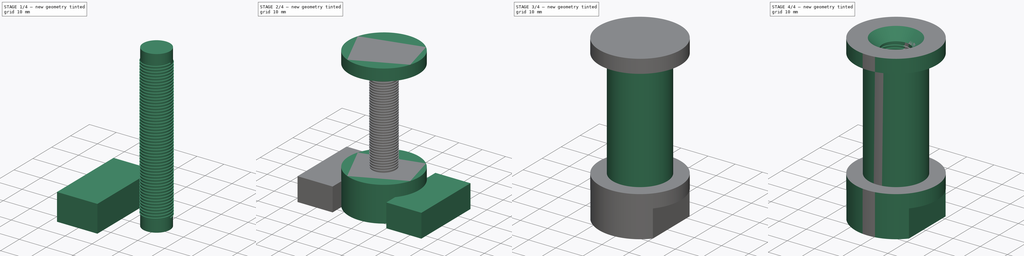
[diagram: build sequence overview — one tinted view per stage of 4, left to right]
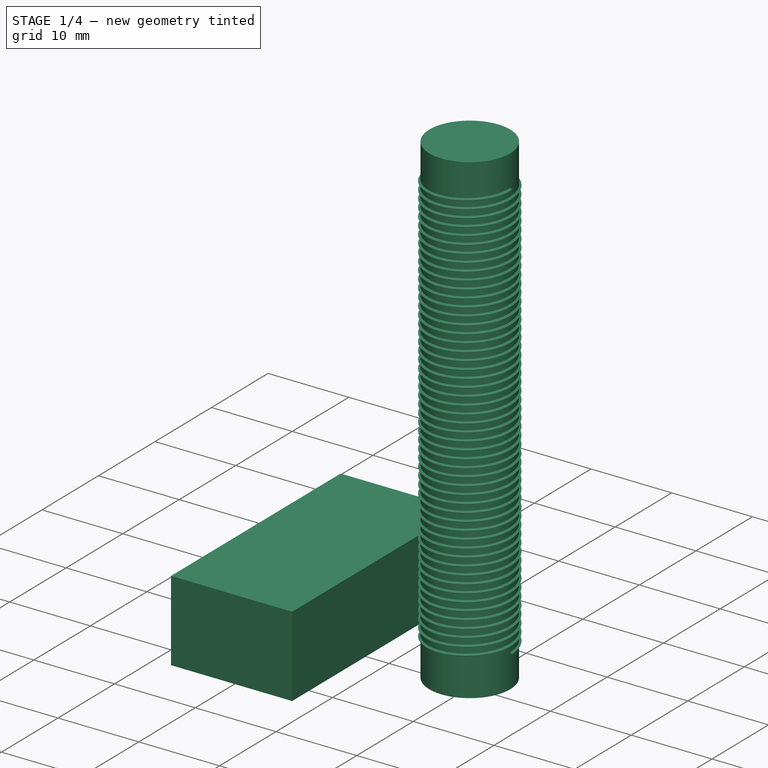
[diagram: stage 1 of 4 — iso view after this stage's code; geometry added in this stage tinted green]
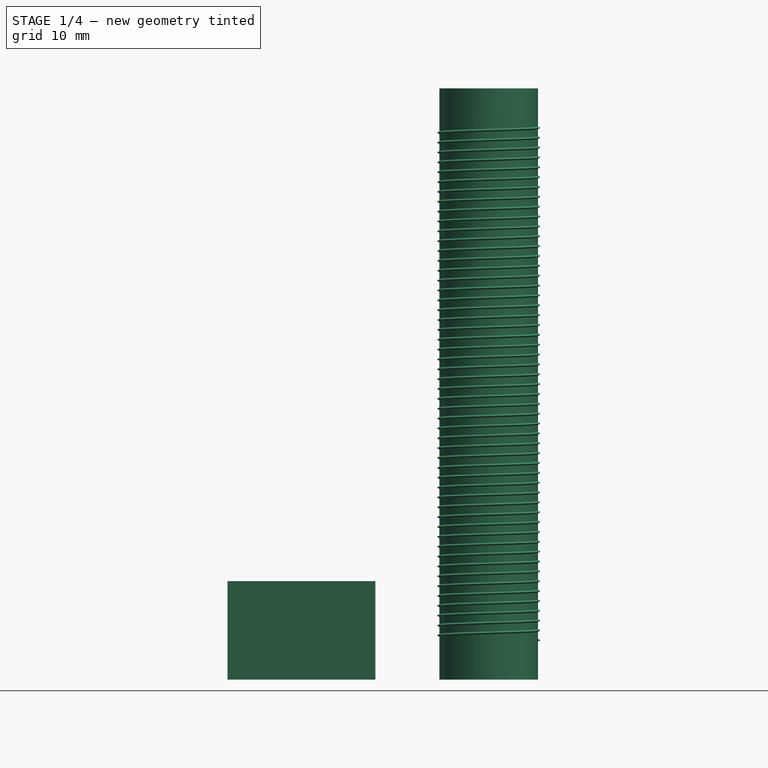
[diagram: stage 1 of 4 — front view after this stage's code; geometry added in this stage tinted green]
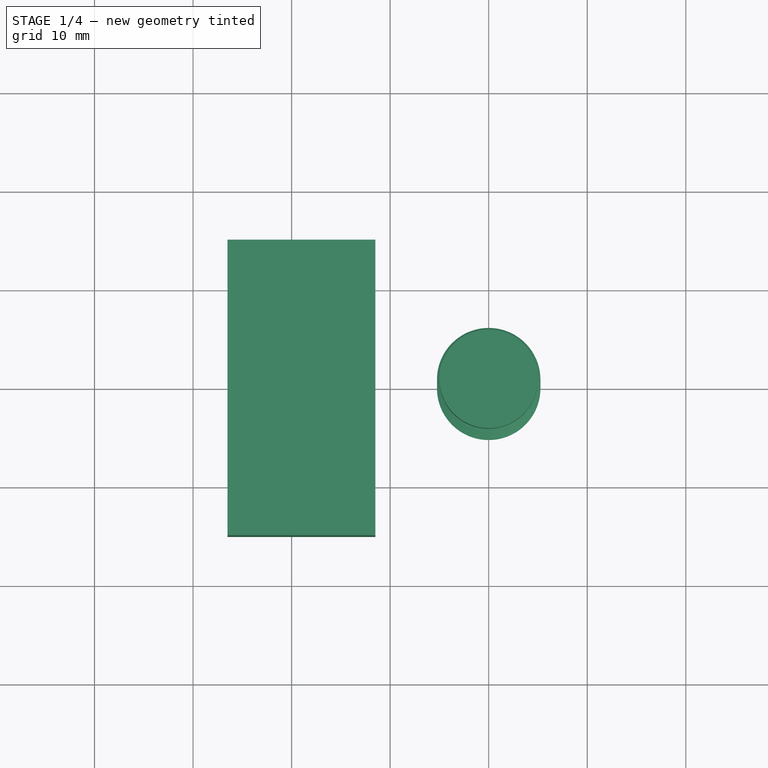
[diagram: stage 1 of 4 — top view after this stage's code; geometry added in this stage tinted green]
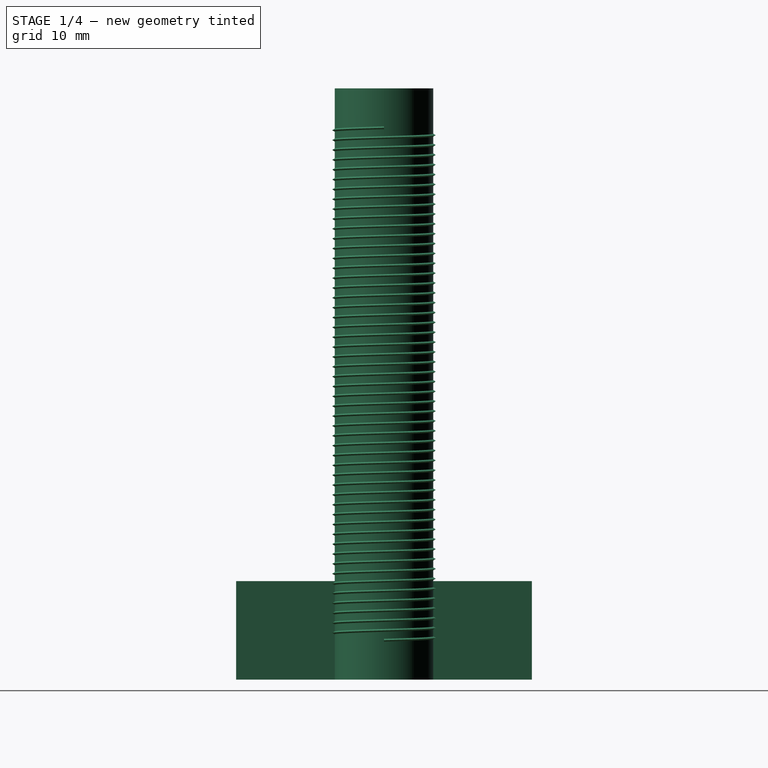
[diagram: stage 1 of 4 — right view after this stage's code; geometry added in this stage tinted green]
FCSTD DOCUMENT  (FreeCAD 0.17R11624 (Git))
Label: core
License: All rights reserved
LicenseURL: http://en.wikipedia.org/wiki/All_rights_reserved
objects: Drawing::FeatureViewPython×35, Part::Cylinder×4, Part::Cut×4, Drawing::FeatureViewPart×4, Part::Box×2, Part::MultiFuse×1, Part::Helix×1, Sketcher::SketchObject×1, Part::Sweep×1, Part::Chamfer×1, Drawing::FeaturePage×1
note: 15 computed .brp shape members not serialized (recipe doc carries the construction recipe); baked Part::Feature solids carry a one-line shape summary decoded from their .brp

FEATURE [Part::Box] Box001  label="Cube001"
  AttacherType = Attacher::AttachEngine3D
  Height = 10
  Length = 15
  Placement = pos=(-26.5,-15,0) rot=(0,0,1;0rad)
  Width = 30
FEATURE [Part::Cylinder] Cylinder003  label="Hole Left"
  Angle = 360
  AttacherType = Attacher::AttachEngine3D
  Height = 60
  Radius = 5
FEATURE [Part::Helix] Helix
  Angle = 0
  AttacherType = Attacher::AttachEngine3D
  Height = 52
  LocalCoord = 0
  Pitch = 1
  Placement = pos=(0,0,4) rot=(0,0,1;0rad)
  Radius = 5
  Style = 1
FEATURE [Sketcher::SketchObject] Sketch
  Placement = pos=(0,0,0) rot=(1,0,0;1.5708rad)
  sketch-geometry (3):
    g0: LineSegment StartX=4.9 StartY=19.2021 StartZ=0 EndX=4.9 EndY=18.7979 EndZ=0
    g1: LineSegment StartX=4.9 StartY=18.7979 StartZ=0 EndX=5.25 EndY=19 EndZ=0
    g2: LineSegment StartX=4.9 StartY=19.2021 StartZ=0 EndX=5.25 EndY=19 EndZ=0
  constraints (9):
    c: Coincident(g1,g0)
    c: Coincident(g2,g0)
    c: Coincident(g2,g1)
    c: Vertical(g0)
    c: Equal(g2,g1)
    c: Angle(g2,g1) = 1.0472
    c: DistanceX(g-1,g0) = 4.9
    c: DistanceX(g-1,g1) = 5.25
    c: DistanceY(g-1,g1) = 19
FEATURE [Part::Sweep] Sweep
  Frenet = true
  Sections = -> [Sketch]
  Solid = true
  Spine = -> Helix
  Transition = 1
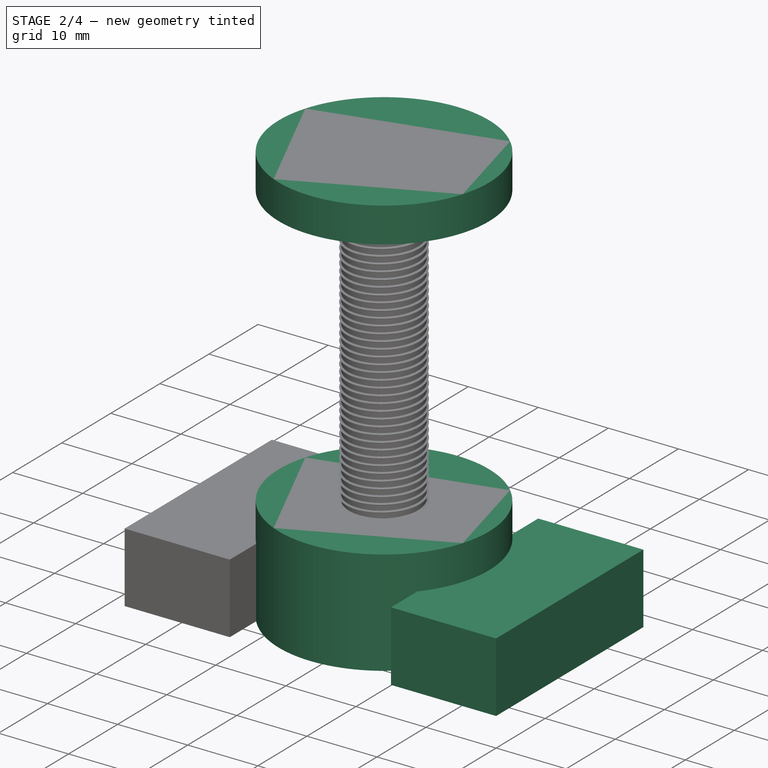
[diagram: stage 2 of 4 — iso view after this stage's code; geometry added in this stage tinted green]
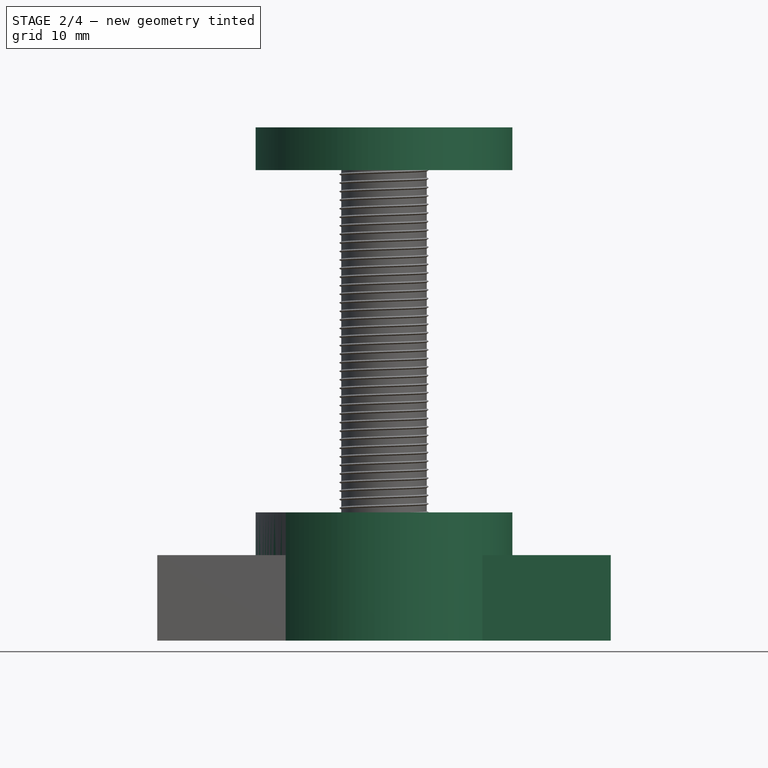
[diagram: stage 2 of 4 — front view after this stage's code; geometry added in this stage tinted green]
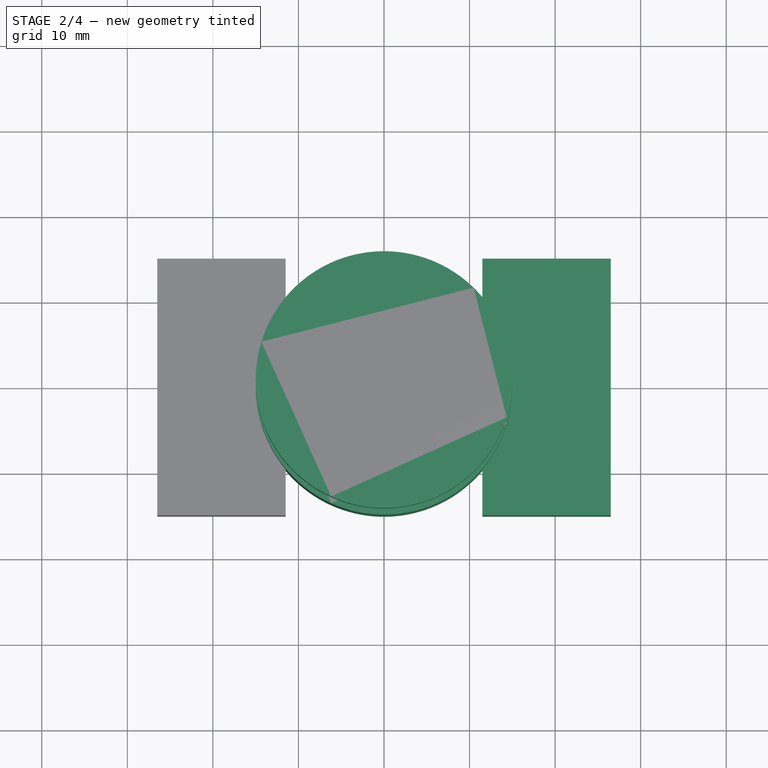
[diagram: stage 2 of 4 — top view after this stage's code; geometry added in this stage tinted green]
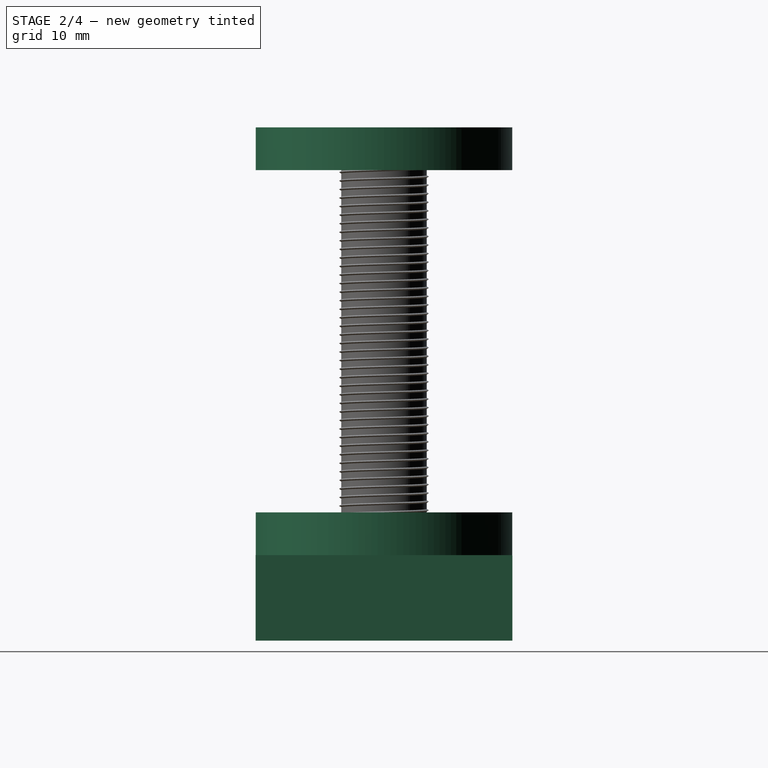
[diagram: stage 2 of 4 — right view after this stage's code; geometry added in this stage tinted green]
FEATURE [Part::Cylinder] Cylinder001
  Angle = 360
  AttacherType = Attacher::AttachEngine3D
  Height = 15
  Radius = 15
FEATURE [Part::Cylinder] Cylinder002
  Angle = 360
  AttacherType = Attacher::AttachEngine3D
  Height = 5
  Placement = pos=(0,0,55) rot=(0,0,1;0rad)
  Radius = 15
FEATURE [Part::Box] Box  label="Cube"
  AttacherType = Attacher::AttachEngine3D
  Height = 10
  Length = 15
  Placement = pos=(11.5,-15,0) rot=(0,0,1;0rad)
  Width = 30
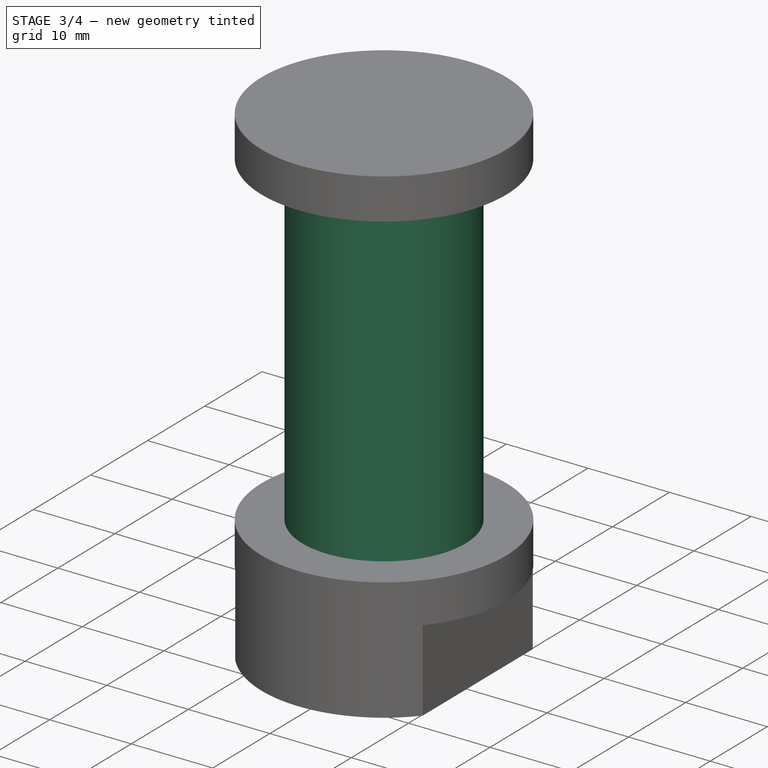
[diagram: stage 3 of 4 — iso view after this stage's code; geometry added in this stage tinted green]
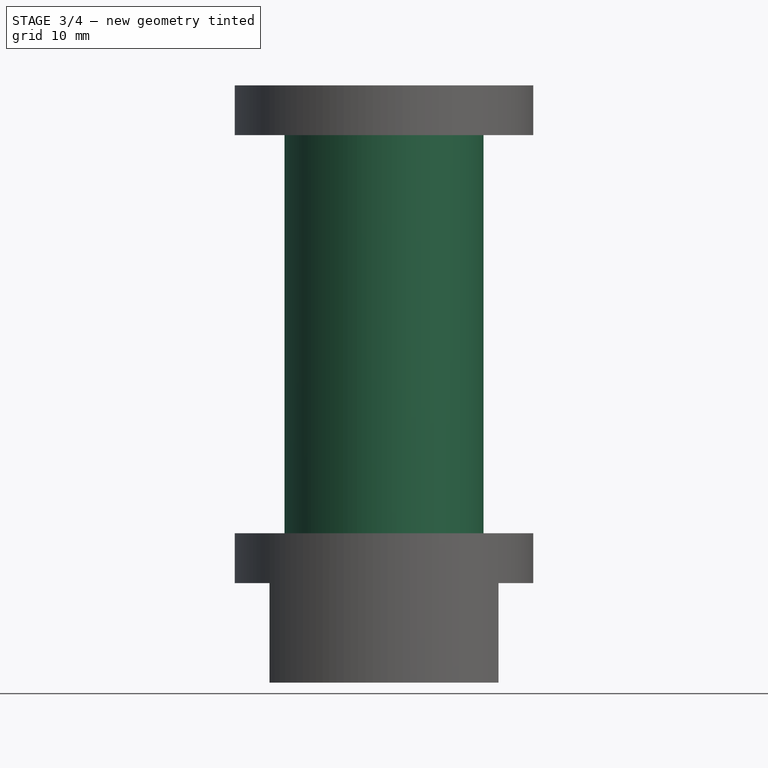
[diagram: stage 3 of 4 — front view after this stage's code; geometry added in this stage tinted green]
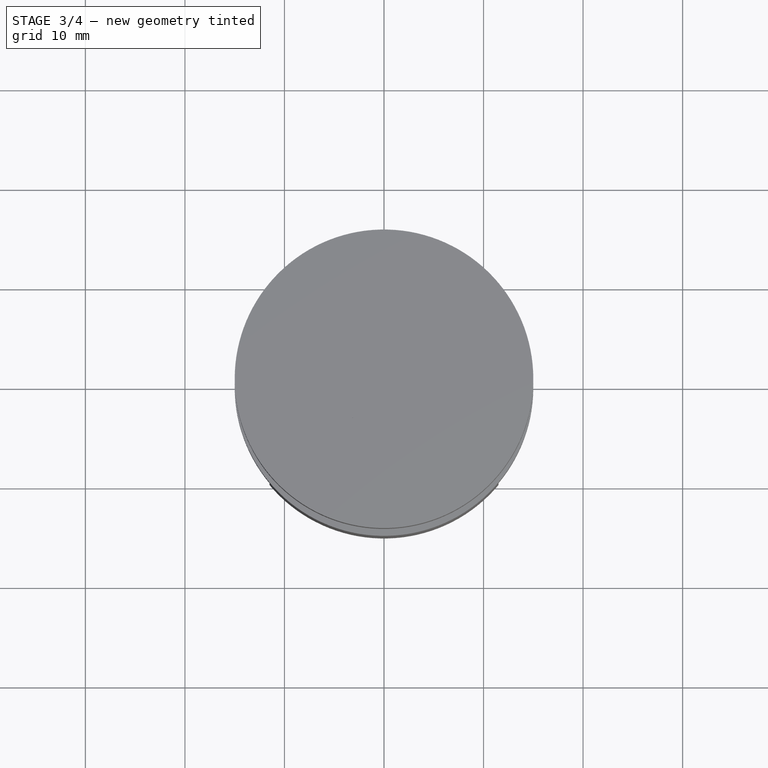
[diagram: stage 3 of 4 — top view after this stage's code; geometry added in this stage tinted green]
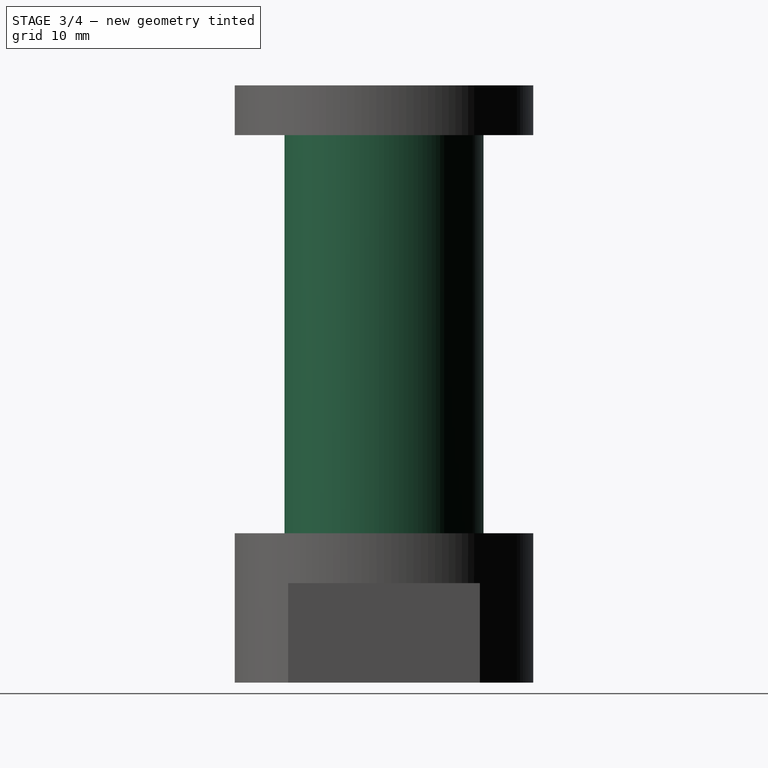
[diagram: stage 3 of 4 — right view after this stage's code; geometry added in this stage tinted green]
FEATURE [Part::Cylinder] Cylinder
  Angle = 360
  AttacherType = Attacher::AttachEngine3D
  Height = 40
  Placement = pos=(0,0,15) rot=(0,0,1;0rad)
  Radius = 10
FEATURE [Part::MultiFuse] Fusion
  Shapes = -> [Cylinder,Cylinder002,Cylinder001]
FEATURE [Part::Cut] Cut
  Base = -> Fusion
  Tool = -> Box
FEATURE [Part::Cut] Cut001
  Base = -> Cut
  Tool = -> Box001
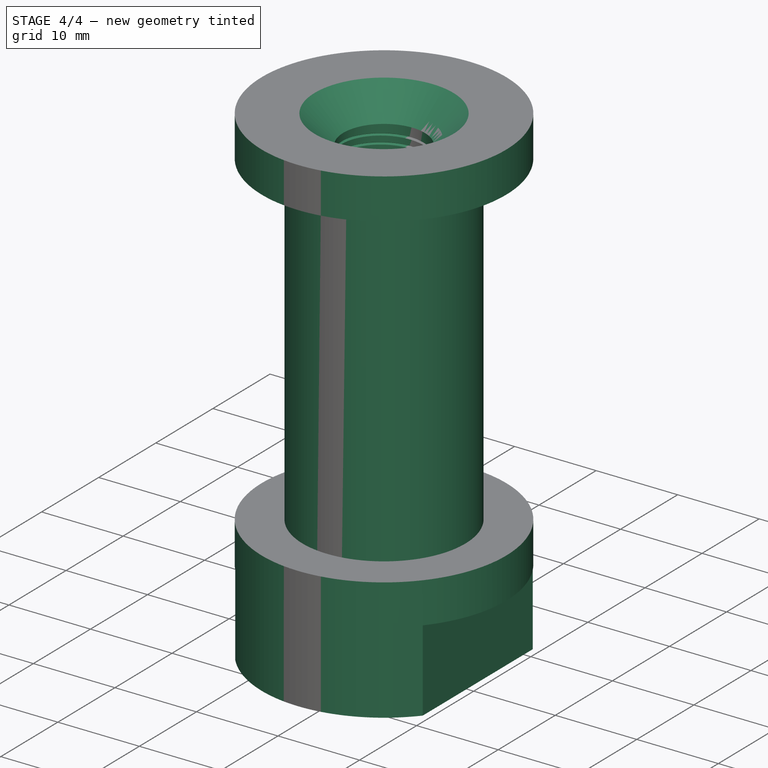
[diagram: stage 4 of 4 — iso view after this stage's code; geometry added in this stage tinted green]
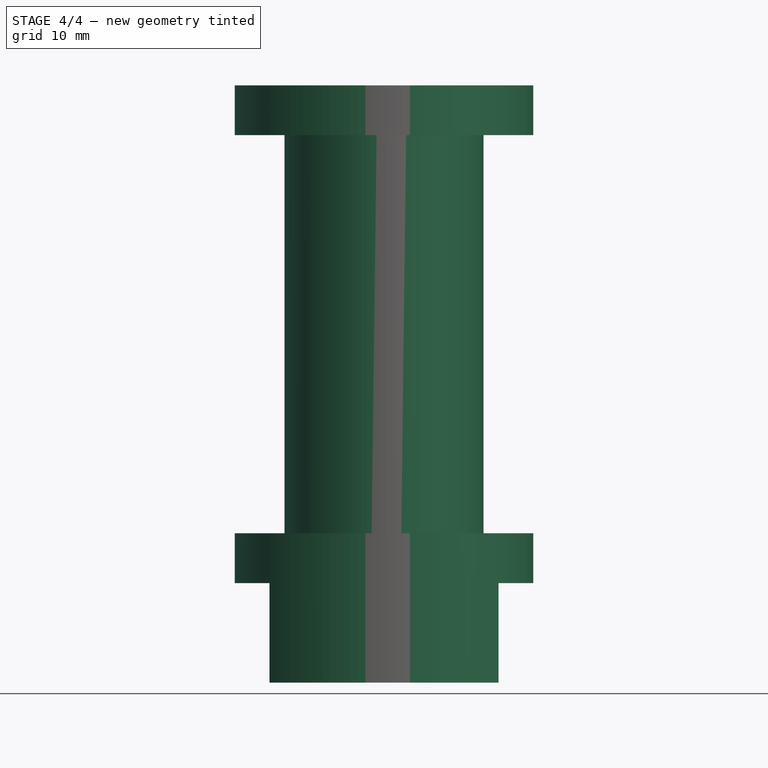
[diagram: stage 4 of 4 — front view after this stage's code; geometry added in this stage tinted green]
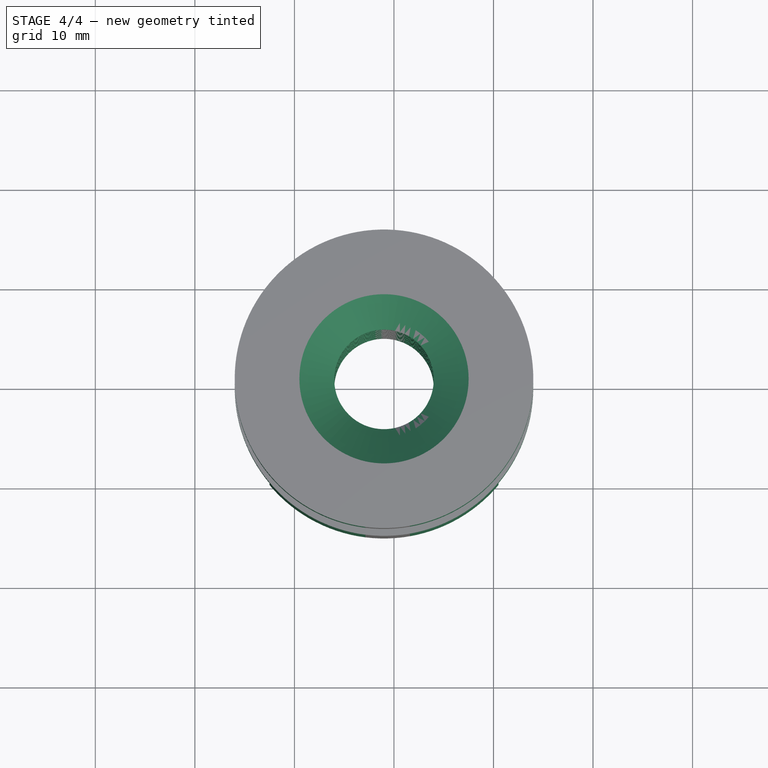
[diagram: stage 4 of 4 — top view after this stage's code; geometry added in this stage tinted green]
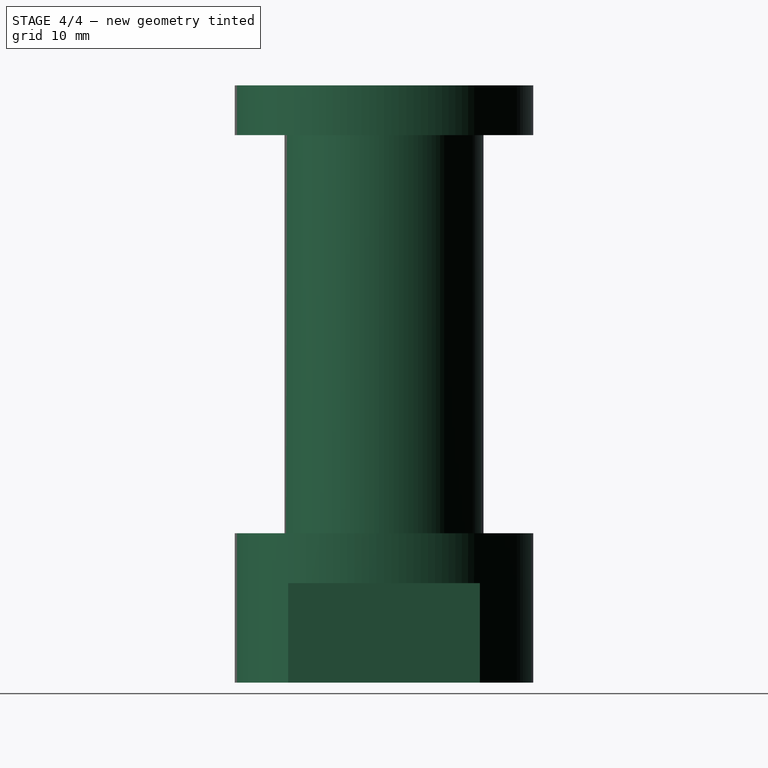
[diagram: stage 4 of 4 — right view after this stage's code; geometry added in this stage tinted green]
FEATURE [Part::Cut] Cut002
  Base = -> Cut001
  Tool = -> Cylinder003
FEATURE [Part::Cut] Cut003
  Base = -> Cut002
  Tool = -> Sweep
FEATURE [Part::Chamfer] Chamfer
  Base = -> Cut003
  Edges = 2 edges r=3.5: [Edge15,Edge46]
  Placement = pos=(-1,0,0) rot=(0,0,1;0rad)
FEATURE [Drawing::FeatureViewPart] Ortho  label="Ortho_0_0"
  Direction = (1,0,0)
  HiddenWidth = 0.15
  LineWidth = 0.35
  Rotation = -90
  Scale = 2
  ShowHiddenLines = true
  ShowSmoothLines = false
  Source = -> Chamfer
  Tolerance = 0.05
  ViewResult = <blob: 126918 chars omitted>
  Visible = false
  X = 70
  Y = 254.667
FEATURE [Drawing::FeatureViewPart] Ortho001  label="Ortho_0_1"
  Direction = (0,0,1)
  HiddenWidth = 0.15
  LineWidth = 0.35
  Rotation = 90
  Scale = 2
  ShowHiddenLines = true
  ShowSmoothLines = false
  Source = -> Chamfer
  Tolerance = 0.05
  ViewResult = <blob: 82679 chars omitted>
  Visible = false
  X = 70
  Y = 74.3333
FEATURE [Drawing::FeatureViewPart] Ortho002  label="Ortho_1_1"
  Direction = (0.57735,0.57735,0.57735)
  HiddenWidth = 0.15
  LineWidth = 0.35
  Rotation = 120
  Scale = 1.7
  ShowHiddenLines = true
  ShowSmoothLines = false
  Source = -> Chamfer
  Tolerance = 0.05
  ViewResult = <blob: 107796 chars omitted>
  Visible = false
  X = 158.798
  Y = 114.669
FEATURE [Drawing::FeatureViewPart] Ortho003  label="Ortho_1_0"
  Direction = (0,1,0)
  HiddenWidth = 0.15
  LineWidth = 0.35
  Rotation = -90
  Scale = 2
  ShowHiddenLines = true
  ShowSmoothLines = false
  Source = -> Chamfer
  Tolerance = 0.05
  ViewResult = <blob: 123150 chars omitted>
  Visible = false
  X = 158
  Y = 254.667
FEATURE [Drawing::FeatureViewPython] dim001  # drawing view (typed FeaturePython)
  Rotation = 0
  ViewResult = <g> \n  <line x1="48.000000" y1="224.667000" x2="19.616776" y2="224.667000" style="stroke:rgb(0,0,255);stroke-width:0.50" />\n<line x1="48.000000" y1="144.667000" x2="19.616776" y2="144.667000" style="stroke:rgb(0,0,255);stroke-width:0.50" />\n<line x1="20.616776" y1="224.667000" x2="20.616776" y2="144.667000" style="stroke:rgb(0,0,255);stroke-width:0.50" /> \n  <polygon points="20.616776,144.667000 19.616776,147.667000 20.616776,148.667000 21.616776,147.667000" style="fill:rgb(0,0,255);stroke:rgb(0,0,255);stroke-width:0" /><polygon points="20.616776,224.667000 21.616776,221.667000 20.616776,220.667000 19.616776,221.667000" style="fill:rgb(0,0,255);stroke:rgb(0,0,255);stroke-width:0" /> \n  <text x="18.616776" y="184.667000" font-family="inherit" font-size="3.6" fill="rgb(0,0,255)" text-anchor="middle" transform="rotate(-90.000000 18.616776,184.667000)" >40</text> </g>
  Visible = false
  X = 0
  Y = 0
  arrowL1 = 3
  arrowL2 = 1
  arrowW = 2
  arrow_scheme = 0
  autoPlaceOffset = 2
  autoPlaceText = true
  click1_x = 20.6168
  click1_y = 184.113
  click2_x = 20.6168
  click2_y = 184.113
  comma_decimal_place = false
  dimension_line_overshoot = 1
  gap_datum_points = 2
  halfDimension_linear = false
  lineColor = rgb(0,0,255)
  strokeWidth = 0.5
  textFormat_linear = %(value)3.3f
  textRenderer_color = rgb(0,0,255)
  textRenderer_family = inherit
  textRenderer_size = 3.6
  unit_custom_scale = 1
  unit_scheme = 0
FEATURE [Drawing::FeatureViewPython] dim002  # drawing view (typed FeaturePython)
  Rotation = 0
  ViewResult = <g> \n  <line x1="38.000000" y1="144.667000" x2="19.616776" y2="144.667000" style="stroke:rgb(0,0,255);stroke-width:0.50" />\n<line x1="38.000000" y1="134.667000" x2="19.616776" y2="134.667000" style="stroke:rgb(0,0,255);stroke-width:0.50" />\n<line x1="20.616776" y1="144.667000" x2="20.616776" y2="134.667000" style="stroke:rgb(0,0,255);stroke-width:0.50" /> \n  <polygon points="20.616776,134.667000 21.616776,131.667000 20.616776,130.667000 19.616776,131.667000" style="fill:rgb(0,0,255);stroke:rgb(0,0,255);stroke-width:0" /><polygon points="20.616776,144.667000 19.616776,147.667000 20.616776,148.667000 21.616776,147.667000" style="fill:rgb(0,0,255);stroke:rgb(0,0,255);stroke-width:0" /> \n  <text x="18.616776" y="139.667000" font-family="inherit" font-size="3.6" fill="rgb(0,0,255)" text-anchor="middle" transform="rotate(-90.000000 18.616776,139.667000)" >5</text> </g>
  Visible = false
  X = 0
  Y = 0
  arrowL1 = 3
  arrowL2 = 1
  arrowW = 2
  arrow_scheme = 0
  autoPlaceOffset = 2
  autoPlaceText = true
  click1_x = 20.6168
  click1_y = 137.605
  click2_x = 20.6168
  click2_y = 137.605
  comma_decimal_place = false
  dimension_line_overshoot = 1
  gap_datum_points = 2
  halfDimension_linear = false
  lineColor = rgb(0,0,255)
  strokeWidth = 0.5
  textFormat_linear = %(value)3.3f
  textRenderer_color = rgb(0,0,255)
  textRenderer_family = inherit
  textRenderer_size = 3.6
  unit_custom_scale = 1
  unit_scheme = 0
FEATURE [Drawing::FeatureViewPython] dim003  # drawing view (typed FeaturePython)
  Rotation = 0
  ViewResult = <g> \n  <line x1="38.000000" y1="254.667000" x2="20.096236" y2="254.667000" style="stroke:rgb(0,0,255);stroke-width:0.50" />\n<line x1="38.000000" y1="224.667000" x2="20.096236" y2="224.667000" style="stroke:rgb(0,0,255);stroke-width:0.50" />\n<line x1="21.096236" y1="254.667000" x2="21.096236" y2="224.667000" style="stroke:rgb(0,0,255);stroke-width:0.50" /> \n  <polygon points="21.096236,224.667000 20.096236,227.667000 21.096236,228.667000 22.096236,227.667000" style="fill:rgb(0,0,255);stroke:rgb(0,0,255);stroke-width:0" /><polygon points="21.096236,254.667000 22.096236,251.667000 21.096236,250.667000 20.096236,251.667000" style="fill:rgb(0,0,255);stroke:rgb(0,0,255);stroke-width:0" /> \n  <text x="19.096236" y="239.667000" font-family="inherit" font-size="3.6" fill="rgb(0,0,255)" text-anchor="middle" transform="rotate(-90.000000 19.096236,239.667000)" >15</text> </g>
  Visible = false
  X = 0
  Y = 0
  arrowL1 = 3
  arrowL2 = 1
  arrowW = 2
  arrow_scheme = 0
  autoPlaceOffset = 2
  autoPlaceText = true
  click1_x = 21.0962
  click1_y = 236.853
  click2_x = 21.0962
  click2_y = 236.853
  comma_decimal_place = false
  dimension_line_overshoot = 1
  gap_datum_points = 2
  halfDimension_linear = false
  lineColor = rgb(0,0,255)
  strokeWidth = 0.5
  textFormat_linear = %(value)3.3f
  textRenderer_color = rgb(0,0,255)
  textRenderer_family = inherit
  textRenderer_size = 3.6
  unit_custom_scale = 1
  unit_scheme = 0
FEATURE [Drawing::FeatureViewPython] dim004  # drawing view (typed FeaturePython)
  Rotation = 0
  ViewResult = <g> \n  <line x1="192.000000" y1="234.667000" x2="204.770458" y2="234.667000" style="stroke:rgb(0,0,255);stroke-width:0.50" />\n<line x1="192.000000" y1="224.667000" x2="204.770458" y2="224.667000" style="stroke:rgb(0,0,255);stroke-width:0.50" />\n<line x1="203.770458" y1="234.667000" x2="203.770458" y2="224.667000" style="stroke:rgb(0,0,255);stroke-width:0.50" /> \n  <polygon points="203.770458,224.667000 204.770458,221.667000 203.770458,220.667000 202.770458,221.667000" style="fill:rgb(0,0,255);stroke:rgb(0,0,255);stroke-width:0" /><polygon points="203.770458,234.667000 202.770458,237.667000 203.770458,238.667000 204.770458,237.667000" style="fill:rgb(0,0,255);stroke:rgb(0,0,255);stroke-width:0" /> \n  <text x="201.770458" y="229.667000" font-family="inherit" font-size="3.6" fill="rgb(0,0,255)" text-anchor="middle" transform="rotate(-90.000000 201.770458,229.667000)" >5</text> </g>
  Visible = false
  X = 0
  Y = 0
  arrowL1 = 3
  arrowL2 = 1
  arrowW = 2
  arrow_scheme = 0
  autoPlaceOffset = 2
  autoPlaceText = true
  click1_x = 203.77
  click1_y = 227.743
  click2_x = 203.77
  click2_y = 227.743
  comma_decimal_place = false
  dimension_line_overshoot = 1
  gap_datum_points = 2
  halfDimension_linear = false
  lineColor = rgb(0,0,255)
  strokeWidth = 0.5
  textFormat_linear = %(value)3.3f
  textRenderer_color = rgb(0,0,255)
  textRenderer_family = inherit
  textRenderer_size = 3.6
  unit_custom_scale = 1
  unit_scheme = 0
FEATURE [Drawing::FeatureViewPython] dim005  # drawing view (typed FeaturePython)
  Rotation = 0
  ViewResult = <g> \n  <line x1="185.000000" y1="254.667000" x2="204.770458" y2="254.667000" style="stroke:rgb(0,0,255);stroke-width:0.50" />\n<line x1="185.000000" y1="234.667000" x2="204.770458" y2="234.667000" style="stroke:rgb(0,0,255);stroke-width:0.50" />\n<line x1="203.770458" y1="254.667000" x2="203.770458" y2="234.667000" style="stroke:rgb(0,0,255);stroke-width:0.50" /> \n  <polygon points="203.770458,234.667000 202.770458,237.667000 203.770458,238.667000 204.770458,237.667000" style="fill:rgb(0,0,255);stroke:rgb(0,0,255);stroke-width:0" /><polygon points="203.770458,254.667000 204.770458,251.667000 203.770458,250.667000 202.770458,251.667000" style="fill:rgb(0,0,255);stroke:rgb(0,0,255);stroke-width:0" /> \n  <text x="201.770458" y="244.667000" font-family="inherit" font-size="3.6" fill="rgb(0,0,255)" text-anchor="middle" transform="rotate(-90.000000 201.770458,244.667000)" >10</text> </g>
  Visible = false
  X = 0
  Y = 0
  arrowL1 = 3
  arrowL2 = 1
  arrowW = 2
  arrow_scheme = 0
  autoPlaceOffset = 2
  autoPlaceText = true
  click1_x = 203.77
  click1_y = 243.086
  click2_x = 203.77
  click2_y = 243.086
  comma_decimal_place = false
  dimension_line_overshoot = 1
  gap_datum_points = 2
  halfDimension_linear = false
  lineColor = rgb(0,0,255)
  strokeWidth = 0.5
  textFormat_linear = %(value)3.3f
  textRenderer_color = rgb(0,0,255)
  textRenderer_family = inherit
  textRenderer_size = 3.6
  unit_custom_scale = 1
  unit_scheme = 0
FEATURE [Drawing::FeatureViewPython] dim006  # drawing view (typed FeaturePython)
  Rotation = 0
  ViewResult = <g> <line x1="130.000000" y1="236.667000" x2="130.000000" y2="262.785106" style="stroke:rgb(0,0,255);stroke-width:0.50" />\n<line x1="137.000000" y1="256.667000" x2="137.000000" y2="262.785106" style="stroke:rgb(0,0,255);stroke-width:0.50" />\n<line x1="130.000000" y1="261.785106" x2="137.000000" y2="261.785106" style="stroke:rgb(0,0,255);stroke-width:0.50" />\n<polygon points="130.000000,261.785106 127.000000,260.785106 126.000000,261.785106 127.000000,262.785106" style="fill:rgb(0,0,255);stroke:rgb(0,0,255);stroke-width:0" />\n<polygon points="137.000000,261.785106 140.000000,262.785106 141.000000,261.785106 140.000000,260.785106" style="fill:rgb(0,0,255);stroke:rgb(0,0,255);stroke-width:0" />\n<text x="133.500000" y="259.785106" font-family="inherit" font-size="3.6" fill="rgb(0,0,255)" text-anchor="middle" transform="rotate(0.000000 133.500000,259.785106)" >3.5</text> </g> 
  Visible = false
  X = 0
  Y = 0
  arrowL1 = 3
  arrowL2 = 1
  arrowW = 2
  arrow_scheme = 0
  autoPlaceOffset = 2
  autoPlaceText = true
  click1_x = 133.769
  click1_y = 261.785
  click2_x = 133.769
  click2_y = 261.785
  comma_decimal_place = false
  dimension_line_overshoot = 1
  gap_datum_points = 2
  halfDimension_linear = false
  lineColor = rgb(0,0,255)
  strokeWidth = 0.5
  textFormat_linear = %(value)3.3f
  textRenderer_color = rgb(0,0,255)
  textRenderer_family = inherit
  textRenderer_size = 3.6
  unit_custom_scale = 1
  unit_scheme = 0
FEATURE [Drawing::FeatureViewPython] dim007  # drawing view (typed FeaturePython)
  Rotation = 0
  ViewResult = <g> <line x1="190.000000" y1="236.667000" x2="190.000000" y2="262.785106" style="stroke:rgb(0,0,255);stroke-width:0.50" />\n<line x1="183.000000" y1="256.667000" x2="183.000000" y2="262.785106" style="stroke:rgb(0,0,255);stroke-width:0.50" />\n<line x1="190.000000" y1="261.785106" x2="183.000000" y2="261.785106" style="stroke:rgb(0,0,255);stroke-width:0.50" />\n<polygon points="190.000000,261.785106 193.000000,262.785106 194.000000,261.785106 193.000000,260.785106" style="fill:rgb(0,0,255);stroke:rgb(0,0,255);stroke-width:0" />\n<polygon points="183.000000,261.785106 180.000000,260.785106 179.000000,261.785106 180.000000,262.785106" style="fill:rgb(0,0,255);stroke:rgb(0,0,255);stroke-width:0" />\n<text x="186.500000" y="259.785106" font-family="inherit" font-size="3.6" fill="rgb(0,0,255)" text-anchor="middle" transform="rotate(0.000000 186.500000,259.785106)" >3.5</text> </g> 
  Visible = false
  X = 0
  Y = 0
  arrowL1 = 3
  arrowL2 = 1
  arrowW = 2
  arrow_scheme = 0
  autoPlaceOffset = 2
  autoPlaceText = true
  click1_x = 189.387
  click1_y = 261.785
  click2_x = 189.387
  click2_y = 261.785
  comma_decimal_place = false
  dimension_line_overshoot = 1
  gap_datum_points = 2
  halfDimension_linear = false
  lineColor = rgb(0,0,255)
  strokeWidth = 0.5
  textFormat_linear = %(value)3.3f
  textRenderer_color = rgb(0,0,255)
  textRenderer_family = inherit
  textRenderer_size = 3.6
  unit_custom_scale = 1
  unit_scheme = 0
FEATURE [Drawing::FeatureViewPython] dim008  # drawing view (typed FeaturePython)
  Rotation = 0
  ViewResult = <g> <line x1="100.000000" y1="132.667000" x2="100.000000" y2="113.590916" style="stroke:rgb(0,0,255);stroke-width:0.50" />\n<line x1="40.000000" y1="132.667000" x2="40.000000" y2="113.590916" style="stroke:rgb(0,0,255);stroke-width:0.50" />\n<line x1="100.000000" y1="114.590916" x2="40.000000" y2="114.590916" style="stroke:rgb(0,0,255);stroke-width:0.50" />\n<polygon points="100.000000,114.590916 97.000000,113.590916 96.000000,114.590916 97.000000,115.590916" style="fill:rgb(0,0,255);stroke:rgb(0,0,255);stroke-width:0" />\n<polygon points="40.000000,114.590916 43.000000,115.590916 44.000000,114.590916 43.000000,113.590916" style="fill:rgb(0,0,255);stroke:rgb(0,0,255);stroke-width:0" />\n<text x="70.000000" y="112.590916" font-family="inherit" font-size="3.6" fill="rgb(0,0,255)" text-anchor="middle" transform="rotate(0.000000 70.000000,112.590916)" >30</text> </g> 
  Visible = false
  X = 0
  Y = 0
  arrowL1 = 3
  arrowL2 = 1
  arrowW = 2
  arrow_scheme = 0
  autoPlaceOffset = 2
  autoPlaceText = true
  click1_x = 56.0968
  click1_y = 114.591
  click2_x = 56.0968
  click2_y = 114.591
  comma_decimal_place = false
  dimension_line_overshoot = 1
  gap_datum_points = 2
  halfDimension_linear = false
  lineColor = rgb(0,0,255)
  strokeWidth = 0.5
  textFormat_linear = %(value)3.3f
  textRenderer_color = rgb(0,0,255)
  textRenderer_family = inherit
  textRenderer_size = 3.6
  unit_custom_scale = 1
  unit_scheme = 0
FEATURE [Drawing::FeatureViewPython] dim009  # drawing view (typed FeaturePython)
  Rotation = 0
  ViewResult = <g> <line x1="50.000000" y1="142.667000" x2="50.000000" y2="122.221195" style="stroke:rgb(0,0,255);stroke-width:0.50" />\n<line x1="90.000000" y1="142.667000" x2="90.000000" y2="122.221195" style="stroke:rgb(0,0,255);stroke-width:0.50" />\n<line x1="50.000000" y1="123.221195" x2="90.000000" y2="123.221195" style="stroke:rgb(0,0,255);stroke-width:0.50" />\n<polygon points="50.000000,123.221195 53.000000,124.221195 54.000000,123.221195 53.000000,122.221195" style="fill:rgb(0,0,255);stroke:rgb(0,0,255);stroke-width:0" />\n<polygon points="90.000000,123.221195 87.000000,122.221195 86.000000,123.221195 87.000000,124.221195" style="fill:rgb(0,0,255);stroke:rgb(0,0,255);stroke-width:0" />\n<text x="70.000000" y="121.221195" font-family="inherit" font-size="3.6" fill="rgb(0,0,255)" text-anchor="middle" transform="rotate(0.000000 70.000000,121.221195)" >20</text> </g> 
  Visible = false
  X = 0
  Y = 0
  arrowL1 = 3
  arrowL2 = 1
  arrowW = 2
  arrow_scheme = 0
  autoPlaceOffset = 2
  autoPlaceText = true
  click1_x = 69.0422
  click1_y = 123.221
  click2_x = 69.0422
  click2_y = 123.221
  comma_decimal_place = false
  dimension_line_overshoot = 1
  gap_datum_points = 2
  halfDimension_linear = false
  lineColor = rgb(0,0,255)
  strokeWidth = 0.5
  textFormat_linear = %(value)3.3f
  textRenderer_color = rgb(0,0,255)
  textRenderer_family = inherit
  textRenderer_size = 3.6
  unit_custom_scale = 1
  unit_scheme = 0
FEATURE [Drawing::FeatureViewPython] dim010  # drawing view (typed FeaturePython)
  Rotation = 0
  ViewResult = <g> <line x1="48.738640" y1="49.333300" x2="20.575696" y2="49.333300" style="stroke:rgb(0,0,255);stroke-width:0.50" />\n<line x1="48.738640" y1="95.333300" x2="20.575696" y2="95.333300" style="stroke:rgb(0,0,255);stroke-width:0.50" />\n<line x1="21.575696" y1="49.333300" x2="21.575696" y2="95.333300" style="stroke:rgb(0,0,255);stroke-width:0.50" />\n<polygon points="21.575696,49.333300 20.575696,52.333300 21.575696,53.333300 22.575696,52.333300" style="fill:rgb(0,0,255);stroke:rgb(0,0,255);stroke-width:0" />\n<polygon points="21.575696,95.333300 22.575696,92.333300 21.575696,91.333300 20.575696,92.333300" style="fill:rgb(0,0,255);stroke:rgb(0,0,255);stroke-width:0" />\n<text x="19.575696" y="72.333300" font-family="inherit" font-size="3.6" fill="rgb(0,0,255)" text-anchor="middle" transform="rotate(-90.000000 19.575696,72.333300)" >23</text> </g> 
  Visible = false
  X = 0
  Y = 0
  arrowL1 = 3
  arrowL2 = 1
  arrowW = 2
  arrow_scheme = 0
  autoPlaceOffset = 2
  autoPlaceText = true
  click1_x = 21.5757
  click1_y = 77.193
  click2_x = 21.5757
  click2_y = 77.193
  comma_decimal_place = false
  dimension_line_overshoot = 1
  gap_datum_points = 2
  halfDimension_linear = false
  lineColor = rgb(0,0,255)
  strokeWidth = 0.5
  textFormat_linear = %(value)3.3f
  textRenderer_color = rgb(0,0,255)
  textRenderer_family = inherit
  textRenderer_size = 3.6
  unit_custom_scale = 1
  unit_scheme = 0
FEATURE [Drawing::FeatureViewPython] dim011  # drawing view (typed FeaturePython)
  Rotation = 0
  ViewResult = <g> <line x1="137.000000" y1="256.667000" x2="137.000000" y2="269.497545" style="stroke:rgb(0,0,255);stroke-width:0.50" />\n<line x1="183.000000" y1="256.667000" x2="183.000000" y2="269.497545" style="stroke:rgb(0,0,255);stroke-width:0.50" />\n<line x1="137.000000" y1="268.497545" x2="183.000000" y2="268.497545" style="stroke:rgb(0,0,255);stroke-width:0.50" />\n<polygon points="137.000000,268.497545 140.000000,269.497545 141.000000,268.497545 140.000000,267.497545" style="fill:rgb(0,0,255);stroke:rgb(0,0,255);stroke-width:0" />\n<polygon points="183.000000,268.497545 180.000000,267.497545 179.000000,268.497545 180.000000,269.497545" style="fill:rgb(0,0,255);stroke:rgb(0,0,255);stroke-width:0" />\n<text x="160.000000" y="266.497545" font-family="inherit" font-size="3.6" fill="rgb(0,0,255)" text-anchor="middle" transform="rotate(0.000000 160.000000,266.497545)" >23</text> </g> 
  Visible = false
  X = 0
  Y = 0
  arrowL1 = 3
  arrowL2 = 1
  arrowW = 2
  arrow_scheme = 0
  autoPlaceOffset = 2
  autoPlaceText = true
  click1_x = 164.934
  click1_y = 268.498
  click2_x = 164.934
  click2_y = 268.498
  comma_decimal_place = false
  dimension_line_overshoot = 1
  gap_datum_points = 2
  halfDimension_linear = false
  lineColor = rgb(0,0,255)
  strokeWidth = 0.5
  textFormat_linear = %(value)3.3f
  textRenderer_color = rgb(0,0,255)
  textRenderer_family = inherit
  textRenderer_size = 3.6
  unit_custom_scale = 1
  unit_scheme = 0
FEATURE [Drawing::FeatureViewPython] dim012  # drawing view (typed FeaturePython)
  Rotation = 0
  ViewResult = <g> \n  <line x1="60.000000" y1="249.667000" x2="60.000000" y2="264.013907" style="stroke:rgb(0,0,255);stroke-width:0.50" />\n<line x1="53.000000" y1="256.667000" x2="53.000000" y2="264.013907" style="stroke:rgb(0,0,255);stroke-width:0.50" />\n<line x1="60.000000" y1="263.013907" x2="53.000000" y2="263.013907" style="stroke:rgb(0,0,255);stroke-width:0.50" /> \n  <polygon points="53.000000,263.013907 50.000000,262.013907 49.000000,263.013907 50.000000,264.013907" style="fill:rgb(0,0,255);stroke:rgb(0,0,255);stroke-width:0" /><polygon points="60.000000,263.013907 63.000000,264.013907 64.000000,263.013907 63.000000,262.013907" style="fill:rgb(0,0,255);stroke:rgb(0,0,255);stroke-width:0" /> \n  <text x="56.500000" y="261.013907" font-family="inherit" font-size="3.6" fill="rgb(0,0,255)" text-anchor="middle" transform="rotate(0.000000 56.500000,261.013907)" >3.5</text> </g>
  Visible = false
  X = 0
  Y = 0
  arrowL1 = 3
  arrowL2 = 1
  arrowW = 2
  arrow_scheme = 0
  autoPlaceOffset = 2
  autoPlaceText = true
  click1_x = 54.5296
  click1_y = 263.014
  click2_x = 54.5296
  click2_y = 263.014
  comma_decimal_place = false
  dimension_line_overshoot = 1
  gap_datum_points = 2
  halfDimension_linear = false
  lineColor = rgb(0,0,255)
  strokeWidth = 0.5
  textFormat_linear = %(value)3.3f
  textRenderer_color = rgb(0,0,255)
  textRenderer_family = inherit
  textRenderer_size = 3.6
  unit_custom_scale = 1
  unit_scheme = 0
FEATURE [Drawing::FeatureViewPython] dim013  # drawing view (typed FeaturePython)
  Rotation = 0
  ViewResult = <g> \n  <line x1="58.000000" y1="247.667000" x2="30.002688" y2="247.667000" style="stroke:rgb(0,0,255);stroke-width:0.50" />\n<line x1="51.000000" y1="254.667000" x2="30.002688" y2="254.667000" style="stroke:rgb(0,0,255);stroke-width:0.50" />\n<line x1="31.002688" y1="247.667000" x2="31.002688" y2="254.667000" style="stroke:rgb(0,0,255);stroke-width:0.50" /> \n  <polygon points="31.002688,254.667000 30.002688,257.667000 31.002688,258.667000 32.002688,257.667000" style="fill:rgb(0,0,255);stroke:rgb(0,0,255);stroke-width:0" /><polygon points="31.002688,247.667000 32.002688,244.667000 31.002688,243.667000 30.002688,244.667000" style="fill:rgb(0,0,255);stroke:rgb(0,0,255);stroke-width:0" /> \n  <text x="29.002688" y="251.167000" font-family="inherit" font-size="3.6" fill="rgb(0,0,255)" text-anchor="middle" transform="rotate(-90.000000 29.002688,251.167000)" >3.5</text> </g>
  Visible = false
  X = 0
  Y = 0
  arrowL1 = 3
  arrowL2 = 1
  arrowW = 2
  arrow_scheme = 0
  autoPlaceOffset = 2
  autoPlaceText = true
  click1_x = 31.0027
  click1_y = 250.453
  click2_x = 31.0027
  click2_y = 250.453
  comma_decimal_place = false
  dimension_line_overshoot = 1
  gap_datum_points = 2
  halfDimension_linear = false
  lineColor = rgb(0,0,255)
  strokeWidth = 0.5
  textFormat_linear = %(value)3.3f
  textRenderer_color = rgb(0,0,255)
  textRenderer_family = inherit
  textRenderer_size = 3.6
  unit_custom_scale = 1
  unit_scheme = 0
FEATURE [Drawing::FeatureViewPython] dim014  # drawing view (typed FeaturePython)
  Rotation = 0
  ViewResult = <g> \n  <line x1="172.000000" y1="141.667000" x2="207.431296" y2="141.667000" style="stroke:rgb(0,0,255);stroke-width:0.50" />\n<line x1="179.000000" y1="134.667000" x2="207.431296" y2="134.667000" style="stroke:rgb(0,0,255);stroke-width:0.50" />\n<line x1="206.431296" y1="141.667000" x2="206.431296" y2="134.667000" style="stroke:rgb(0,0,255);stroke-width:0.50" /> \n  <polygon points="206.431296,134.667000 207.431296,131.667000 206.431296,130.667000 205.431296,131.667000" style="fill:rgb(0,0,255);stroke:rgb(0,0,255);stroke-width:0" /><polygon points="206.431296,141.667000 205.431296,144.667000 206.431296,145.667000 207.431296,144.667000" style="fill:rgb(0,0,255);stroke:rgb(0,0,255);stroke-width:0" /> \n  <text x="204.431296" y="138.167000" font-family="inherit" font-size="3.6" fill="rgb(0,0,255)" text-anchor="middle" transform="rotate(-90.000000 204.431296,138.167000)" >3.5</text> </g>
  Visible = false
  X = 0
  Y = 0
  arrowL1 = 3
  arrowL2 = 1
  arrowW = 2
  arrow_scheme = 0
  autoPlaceOffset = 2
  autoPlaceText = true
  click1_x = 206.431
  click1_y = 140.323
  click2_x = 206.431
  click2_y = 140.323
  comma_decimal_place = false
  dimension_line_overshoot = 1
  gap_datum_points = 2
  halfDimension_linear = false
  lineColor = rgb(0,0,255)
  strokeWidth = 0.5
  textFormat_linear = %(value)3.3f
  textRenderer_color = rgb(0,0,255)
  textRenderer_family = inherit
  textRenderer_size = 3.6
  unit_custom_scale = 1
  unit_scheme = 0
FEATURE [Drawing::FeatureViewPython] dim015  # drawing view (typed FeaturePython)
  Rotation = 0
  ViewResult = <g> \n  <line x1="170.000000" y1="139.667000" x2="170.000000" y2="131.217345" style="stroke:rgb(0,0,255);stroke-width:0.50" />\n<line x1="177.000000" y1="132.667000" x2="177.000000" y2="131.217345" style="stroke:rgb(0,0,255);stroke-width:0.50" />\n<line x1="170.000000" y1="132.217345" x2="177.000000" y2="132.217345" style="stroke:rgb(0,0,255);stroke-width:0.50" /> \n  <polygon points="177.000000,132.217345 180.000000,133.217345 181.000000,132.217345 180.000000,131.217345" style="fill:rgb(0,0,255);stroke:rgb(0,0,255);stroke-width:0" /><polygon points="170.000000,132.217345 167.000000,131.217345 166.000000,132.217345 167.000000,133.217345" style="fill:rgb(0,0,255);stroke:rgb(0,0,255);stroke-width:0" /> \n  <text x="173.500000" y="130.217345" font-family="inherit" font-size="3.6" fill="rgb(0,0,255)" text-anchor="middle" transform="rotate(0.000000 173.500000,130.217345)" >3.5</text> </g>
  Visible = false
  X = 0
  Y = 0
  arrowL1 = 3
  arrowL2 = 1
  arrowW = 2
  arrow_scheme = 0
  autoPlaceOffset = 2
  autoPlaceText = true
  click1_x = 172.744
  click1_y = 132.217
  click2_x = 172.744
  click2_y = 132.217
  comma_decimal_place = false
  dimension_line_overshoot = 1
  gap_datum_points = 2
  halfDimension_linear = false
  lineColor = rgb(0,0,255)
  strokeWidth = 0.5
  textFormat_linear = %(value)3.3f
  textRenderer_color = rgb(0,0,255)
  textRenderer_family = inherit
  textRenderer_size = 3.6
  unit_custom_scale = 1
  unit_scheme = 0
FEATURE [Drawing::FeatureViewPython] dia001  # drawing view (typed FeaturePython)
  Rotation = 0
  ViewResult = <g>  <circle cx ="70.000000" cy ="72.333300" r="0.250000" stroke="none" fill="rgb(0,0,255)" /> \n<line x1="105.254490" y1="57.354243" x2="60.796305" y2="76.243799" style="stroke:rgb(0,0,255);stroke-width:0.50" />\n<polygon points="79.203695,68.422801 76.051536,68.675581 75.522217,69.987000 76.833636,70.516320" style="fill:rgb(0,0,255);stroke:rgb(0,0,255);stroke-width:0" />\n<polygon points="60.796305,76.243799 63.948464,75.991019 64.477783,74.679600 63.166364,74.150280" style="fill:rgb(0,0,255);stroke:rgb(0,0,255);stroke-width:0" />\n<line x1="105.254490" y1="57.354243" x2="122.901950" y2="57.354243" style="stroke:rgb(0,0,255);stroke-width:0.50" />\n<text x="114.078220" y="55.354243" font-family="inherit" font-size="3.6" fill="rgb(0,0,255)" text-anchor="middle" transform="rotate(0.000000 114.078220,55.354243)" >Ø10</text> </g>
  Visible = false
  X = 0
  Y = 0
  arrowL1 = 3
  arrowL2 = 1
  arrowW = 2
  arrow_scheme = 0
  autoPlaceOffset = 2
  autoPlaceText = true
  centerPointDia = 0.5
  click1_x = 105.254
  click1_y = 57.3542
  click2_x = 122.902
  click2_y = 57.3542
  click3_x = 122.902
  click3_y = 57.3542
  comma_decimal_place = false
  lineColor = rgb(0,0,255)
  strokeWidth = 0.5
  textFormat_circular = Ø%(value)3.3f
  textRenderer_color = rgb(0,0,255)
  textRenderer_family = inherit
  textRenderer_size = 3.6
  unit_custom_scale = 1
  unit_scheme = 0
FEATURE [Drawing::FeatureViewPython] dia002  # drawing view (typed FeaturePython)
  Rotation = 0
  ViewResult = <g>  <circle cx ="70.000000" cy ="72.333300" r="0.250000" stroke="none" fill="rgb(0,0,255)" /> \n<line x1="81.304367" y1="43.488382" x2="59.053557" y2="100.264920" style="stroke:rgb(0,0,255);stroke-width:0.50" />\n<polygon points="80.946444,44.401680 78.920745,46.829961 79.486918,48.125896 80.782853,47.559724" style="fill:rgb(0,0,255);stroke:rgb(0,0,255);stroke-width:0" />\n<polygon points="59.053557,100.264920 61.079255,97.836639 60.513083,96.540704 59.217147,97.106876" style="fill:rgb(0,0,255);stroke:rgb(0,0,255);stroke-width:0" />\n<line x1="81.304367" y1="43.488382" x2="110.926888" y2="43.488382" style="stroke:rgb(0,0,255);stroke-width:0.50" />\n<text x="96.115627" y="41.488382" font-family="inherit" font-size="3.6" fill="rgb(0,0,255)" text-anchor="middle" transform="rotate(0.000000 96.115627,41.488382)" >Ø30</text> </g>
  Visible = false
  X = 0
  Y = 0
  arrowL1 = 3
  arrowL2 = 1
  arrowW = 2
  arrow_scheme = 0
  autoPlaceOffset = 2
  autoPlaceText = true
  centerPointDia = 0.5
  click1_x = 81.3044
  click1_y = 43.4884
  click2_x = 110.927
  click2_y = 43.4884
  click3_x = 110.927
  click3_y = 43.4884
  comma_decimal_place = false
  lineColor = rgb(0,0,255)
  strokeWidth = 0.5
  textFormat_circular = Ø%(value)3.3f
  textRenderer_color = rgb(0,0,255)
  textRenderer_family = inherit
  textRenderer_size = 3.6
  unit_custom_scale = 1
  unit_scheme = 0
FEATURE [Drawing::FeatureViewPython] dia003  # drawing view (typed FeaturePython)
  Rotation = 0
  ViewResult = <g>  <circle cx ="70.000000" cy ="72.333300" r="0.250000" stroke="none" fill="rgb(0,0,255)" /> \n<line x1="108.545881" y1="93.664591" x2="55.125735" y2="64.101882" style="stroke:rgb(0,0,255);stroke-width:0.50" />\n<polygon points="84.874265,80.564718 82.733596,78.237158 81.374438,78.627914 81.765193,79.987072" style="fill:rgb(0,0,255);stroke:rgb(0,0,255);stroke-width:0" />\n<polygon points="55.125735,64.101882 57.266404,66.429442 58.625562,66.038686 58.234807,64.679528" style="fill:rgb(0,0,255);stroke:rgb(0,0,255);stroke-width:0" />\n<line x1="108.545881" y1="93.664591" x2="122.551802" y2="93.664591" style="stroke:rgb(0,0,255);stroke-width:0.50" />\n<text x="115.548842" y="91.664591" font-family="inherit" font-size="3.6" fill="rgb(0,0,255)" text-anchor="middle" transform="rotate(0.000000 115.548842,91.664591)" >Ø17</text> </g>
  Visible = false
  X = 0
  Y = 0
  arrowL1 = 3
  arrowL2 = 1
  arrowW = 2
  arrow_scheme = 0
  autoPlaceOffset = 2
  autoPlaceText = true
  centerPointDia = 0.5
  click1_x = 108.546
  click1_y = 93.6646
  click2_x = 122.552
  click2_y = 93.6646
  click3_x = 122.552
  click3_y = 93.6646
  comma_decimal_place = false
  lineColor = rgb(0,0,255)
  strokeWidth = 0.5
  textFormat_circular = Ø%(value)3.3f
  textRenderer_color = rgb(0,0,255)
  textRenderer_family = inherit
  textRenderer_size = 3.6
  unit_custom_scale = 1
  unit_scheme = 0
FEATURE [Drawing::FeatureViewPython] text001  # drawing view (typed FeaturePython)
  Rotation = 0
  ViewResult = <g> <text x="102.604419" y="98.768740" font-family="inherit" font-size="3" fill="rgb(0,0,0)" text-anchor="inherit" transform="rotate(0.000000 102.604419,98.768740)" >Chamfer Outer Dia</text> </g>
  Visible = false
  X = 0
  Y = 0
  click1_x = 102.604
  click1_y = 98.7687
  rotation = 0
  text = Chamfer Outer Dia
  textRenderer_addText_color = rgb(0,0,0)
  textRenderer_addText_family = inherit
  textRenderer_addText_size = 3
FEATURE [Drawing::FeatureViewPython] text002  # drawing view (typed FeaturePython)
  Rotation = 0
  ViewResult = <g> <text x="77.672504" y="112.673077" font-family="inherit" font-size="4" fill="rgb(0,0,0)" text-anchor="inherit" transform="rotate(0.000000 77.672504,112.673077)" >Dia</text> </g>
  Visible = false
  X = 0
  Y = 0
  click1_x = 77.6725
  click1_y = 112.673
  rotation = 0
  text = Dia
  textRenderer_addText_color = rgb(0,0,0)
  textRenderer_addText_family = inherit
  textRenderer_addText_size = 4
FEATURE [Drawing::FeatureViewPython] text003  # drawing view (typed FeaturePython)
  Rotation = 0
  ViewResult = <g> <text x="77.672504" y="121.782815" font-family="inherit" font-size="4" fill="rgb(0,0,0)" text-anchor="inherit" transform="rotate(0.000000 77.672504,121.782815)" >Dia</text> </g>
  Visible = false
  X = 0
  Y = 0
  click1_x = 77.6725
  click1_y = 121.783
  rotation = 0
  text = Dia
  textRenderer_addText_color = rgb(0,0,0)
  textRenderer_addText_family = inherit
  textRenderer_addText_size = 4
FEATURE [Drawing::FeatureViewPython] text004  # drawing view (typed FeaturePython)
  Rotation = 0
  ViewResult = <g> <text x="192.742880" y="151.029869" font-family="inherit" font-size="5" fill="rgb(0,0,0)" text-anchor="inherit" transform="rotate(0.000000 192.742880,151.029869)" >Chamfer Depth</text> </g>
  Visible = false
  X = 0
  Y = 0
  click1_x = 192.743
  click1_y = 151.03
  rotation = 0
  text = Chamfer Depth
  textRenderer_addText_color = rgb(0,0,0)
  textRenderer_addText_family = inherit
  textRenderer_addText_size = 5
FEATURE [Drawing::FeatureViewPython] text005  # drawing view (typed FeaturePython)
  Rotation = 0
  ViewResult = <g> <text x="179.318003" y="129.933633" font-family="inherit" font-size="5" fill="rgb(0,0,0)" text-anchor="inherit" transform="rotate(0.000000 179.318003,129.933633)" >Chamfer Width</text> </g>
  Visible = false
  X = 0
  Y = 0
  click1_x = 179.318
  click1_y = 129.934
  rotation = 0
  text = Chamfer Width
  textRenderer_addText_color = rgb(0,0,0)
  textRenderer_addText_family = inherit
  textRenderer_addText_size = 5
FEATURE [Drawing::FeatureViewPython] text006  # drawing view (typed FeaturePython)
  Rotation = 0
  ViewResult = <g> <text x="23.014075" y="262.264566" font-family="inherit" font-size="3" fill="rgb(0,0,0)" text-anchor="inherit" transform="rotate(0.000000 23.014075,262.264566)" >Chamfer Depth</text> </g>
  Visible = false
  X = 0
  Y = 0
  click1_x = 23.0141
  click1_y = 262.265
  rotation = 0
  text = Chamfer Depth
  textRenderer_addText_color = rgb(0,0,0)
  textRenderer_addText_family = inherit
  textRenderer_addText_size = 3
FEATURE [Drawing::FeatureViewPython] text007  # drawing view (typed FeaturePython)
  Rotation = 0
  ViewResult = <g> <text x="49.384370" y="266.579705" font-family="inherit" font-size="3" fill="rgb(0,0,0)" text-anchor="inherit" transform="rotate(0.000000 49.384370,266.579705)" >Chamfer Width</text> </g>
  Visible = false
  X = 0
  Y = 0
  click1_x = 49.3844
  click1_y = 266.58
  rotation = 0
  text = Chamfer Width
  textRenderer_addText_color = rgb(0,0,0)
  textRenderer_addText_family = inherit
  textRenderer_addText_size = 3
FEATURE [Drawing::FeatureViewPython] text008  # drawing view (typed FeaturePython)
  Rotation = 0
  ViewResult = <g> <text x="77.193044" y="25.411375" font-family="inherit" font-size="5" fill="rgb(0,0,0)" text-anchor="inherit" transform="rotate(0.000000 77.193044,25.411375)" >M10 Inner Thread-Thru</text> </g>
  Visible = false
  X = 0
  Y = 0
  click1_x = 77.193
  click1_y = 25.4114
  rotation = 0
  text = M10 Inner Thread-Thru
  textRenderer_addText_color = rgb(0,0,0)
  textRenderer_addText_family = inherit
  textRenderer_addText_size = 5
FEATURE [Drawing::FeatureViewPython] text009  # drawing view (typed FeaturePython)
  Rotation = 0
  ViewResult = <g> <text x="105.960638" y="62.809247" font-family="inherit" font-size="5" fill="rgb(0,0,0)" text-anchor="inherit" transform="rotate(0.000000 105.960638,62.809247)" >M10 * 1.5 mm</text> </g>
  Visible = false
  X = 0
  Y = 0
  click1_x = 105.961
  click1_y = 62.8092
  rotation = 0
  text = M10 * 1.5 mm
  textRenderer_addText_color = rgb(0,0,0)
  textRenderer_addText_family = inherit
  textRenderer_addText_size = 5
FEATURE [Drawing::FeatureViewPython] dim016  # drawing view (typed FeaturePython)
  Rotation = 0
  ViewResult = <g> <line x1="51.585786" y1="256.081214" x2="40.629317" y2="267.037683" style="stroke:rgb(0,0,255);stroke-width:0.50" />\n<line x1="88.414214" y1="256.081214" x2="99.370683" y2="267.037683" style="stroke:rgb(0,0,255);stroke-width:0.50" />\n<path d = "M 41.336424 266.330576 A 40.536418 40.536418 0 0 0 98.663576 266.330576" style="stroke:rgb(0,0,255);stroke-width:0.50;fill:none" />\n<polygon points="41.336424,266.330576 42.750637,269.159003 44.164851,269.159003 44.164851,267.744790" style="fill:rgb(0,0,255);stroke:rgb(0,0,255);stroke-width:0" />\n<polygon points="98.663576,266.330576 95.835149,267.744790 95.835149,269.159003 97.249363,269.159003" style="fill:rgb(0,0,255);stroke:rgb(0,0,255);stroke-width:0" />\n<text x="67.228417" y="275.216332" font-family="inherit" font-size="3.6" fill="rgb(0,0,255)" text-anchor="1.64447449982"  >90.0°</text> </g>
  Visible = false
  X = 0
  Y = 0
  arrowL1 = 3
  arrowL2 = 1
  arrowW = 2
  arrow_scheme = 0
  click1_x = 64.6023
  click1_y = 277.842
  click2_x = 67.2284
  click2_y = 275.216
  comma_decimal_place = false
  dimension_line_overshoot = 1
  gap_datum_points = 2
  lineColor = rgb(0,0,255)
  strokeWidth = 0.5
  textFormat_angular = %(value)3.1f°
  textRenderer_color = rgb(0,0,255)
  textRenderer_family = inherit
  textRenderer_size = 3.6
FEATURE [Drawing::FeatureViewPython] text010  # drawing view (typed FeaturePython)
  Rotation = 0
  ViewResult = <g> <text x="101.822553" y="278.112347" font-family="inherit" font-size="5" fill="rgb(0,0,0)" text-anchor="inherit" transform="rotate(0.000000 101.822553,278.112347)" >M10 * 1.5 mm Inner Thread - Thru</text> </g>
  Visible = false
  X = 0
  Y = 0
  click1_x = 101.823
  click1_y = 278.112
  rotation = 0
  text = M10 * 1.5 mm Inner Thread - Thru
  textRenderer_addText_color = rgb(0,0,0)
  textRenderer_addText_family = inherit
  textRenderer_addText_size = 5
FEATURE [Drawing::FeatureViewPython] dim017  # drawing view (typed FeaturePython)
  Rotation = 0
  ViewResult = <g> \n  <line x1="81.414214" y1="246.252786" x2="107.246424" y2="220.420576" style="stroke:rgb(0,0,255);stroke-width:0.50" />\n<line x1="88.414214" y1="253.252786" x2="114.246424" y2="227.420576" style="stroke:rgb(0,0,255);stroke-width:0.50" />\n<line x1="106.539317" y1="221.127683" x2="113.539317" y2="228.127683" style="stroke:rgb(0,0,255);stroke-width:0.50" /> \n  <polygon points="113.539317,228.127683 114.953531,230.956110 116.367744,230.956110 116.367744,229.541897" style="fill:rgb(0,0,255);stroke:rgb(0,0,255);stroke-width:0" /><polygon points="106.539317,221.127683 105.125103,218.299256 103.710890,218.299256 103.710890,219.713469" style="fill:rgb(0,0,255);stroke:rgb(0,0,255);stroke-width:0" /> \n  <text x="108.625103" y="223.213469" font-family="inherit" font-size="3.6" fill="rgb(0,0,255)" text-anchor="middle" transform="rotate(-45.000000 108.625103,223.213469)" >4.95</text> </g>
  Visible = false
  X = 0
  Y = 0
  arrowL1 = 3
  arrowL2 = 1
  arrowW = 2
  arrow_scheme = 0
  autoPlaceOffset = 2
  autoPlaceText = true
  click1_x = 107.294
  click1_y = 221.882
  click2_x = 107.294
  click2_y = 221.882
  comma_decimal_place = false
  dimension_line_overshoot = 1
  gap_datum_points = 2
  halfDimension_linear = false
  lineColor = rgb(0,0,255)
  strokeWidth = 0.5
  textFormat_linear = %(value)3.3f
  textRenderer_color = rgb(0,0,255)
  textRenderer_family = inherit
  textRenderer_size = 3.6
  unit_custom_scale = 1
  unit_scheme = 0
FEATURE [Drawing::FeatureViewPython] text011  # drawing view (typed FeaturePython)
  Rotation = 0
  ViewResult = <g> <text x="102.430449" y="216.106972" font-family="inherit" font-size="5" fill="rgb(0,0,0)" text-anchor="inherit" transform="rotate(0.000000 102.430449,216.106972)" >Chamfer</text> </g>
  Visible = false
  X = 0
  Y = 0
  click1_x = 102.43
  click1_y = 216.107
  rotation = 0
  text = Chamfer
  textRenderer_addText_color = rgb(0,0,0)
  textRenderer_addText_family = inherit
  textRenderer_addText_size = 5
FEATURE [Drawing::FeatureViewPython] text012  # drawing view (typed FeaturePython)
  Rotation = 0
  ViewResult = <g> <text x="230.696472" y="222.185930" font-family="inherit" font-size="5" fill="rgb(0,0,0)" text-anchor="inherit" transform="rotate(0.000000 230.696472,222.185930)" >All dimensions are in mm</text> </g>
  Visible = false
  X = 0
  Y = 0
  click1_x = 230.696
  click1_y = 222.186
  rotation = 0
  text = All dimensions are in mm
  textRenderer_addText_color = rgb(0,0,0)
  textRenderer_addText_family = inherit
  textRenderer_addText_size = 5
FEATURE [Drawing::FeatureViewPython] text013  # drawing view (typed FeaturePython)
  Rotation = 0
  ViewResult = <g> <text x="297.868962" y="239.814909" font-family="inherit" font-size="7" fill="rgb(0,0,0)" text-anchor="inherit" transform="rotate(0.000000 297.868962,239.814909)" >EM Coupling Experiment</text> </g>
  Visible = false
  X = 0
  Y = 0
  click1_x = 297.869
  click1_y = 239.815
  rotation = 0
  text = EM Coupling Experiment
  textRenderer_addText_color = rgb(0,0,0)
  textRenderer_addText_family = inherit
  textRenderer_addText_size = 7
FEATURE [Drawing::FeatureViewPython] text014  # drawing view (typed FeaturePython)
  Rotation = 0
  ViewResult = <g> <text x="327.047963" y="247.717555" font-family="inherit" font-size="5" fill="rgb(0,0,0)" text-anchor="inherit" transform="rotate(0.000000 327.047963,247.717555)" >Core</text> </g>
  Visible = false
  X = 0
  Y = 0
  click1_x = 327.048
  click1_y = 247.718
  rotation = 0
  text = Core
  textRenderer_addText_color = rgb(0,0,0)
  textRenderer_addText_family = inherit
  textRenderer_addText_size = 5
FEATURE [Drawing::FeatureViewPython] text015  # drawing view (typed FeaturePython)
  Rotation = 0
  ViewResult = <g> <text x="272.641285" y="263.826795" font-family="inherit" font-size="5" fill="rgb(0,0,0)" text-anchor="inherit" transform="rotate(0.000000 272.641285,263.826795)" >Research Division, Quazar Technologies</text> </g>
  Visible = false
  X = 0
  Y = 0
  click1_x = 272.641
  click1_y = 263.827
  rotation = 0
  text = Research Division, Quazar Technologies
  textRenderer_addText_color = rgb(0,0,0)
  textRenderer_addText_family = inherit
  textRenderer_addText_size = 5
FEATURE [Drawing::FeaturePage] Page
  EditableTexts = AUTHOR NAME | CREATION DATE | SUPERVISOR NAME | CHECK DATE | SCALE | WEIGHT | NUMBER | SHEET | TITLE | SUBTITLE
  Group = -> [Ortho,Ortho001,Ortho002,Ortho003,dim001,dim002,dim003,dim004,dim005,dim006,dim007,dim008,dim009,dim010,dim011,dim012,dim013,dim014,dim015,dia001,dia002,dia003,text001,text002,text003,text004,text005,text006,text007,text008,text009,dim016,text010,dim017,text011,text012,text013,text014,text015]
  Template = <userpath>/work/git/free-cad-code/data/Mod/Drawing/Templates/A3_Landscape.svg
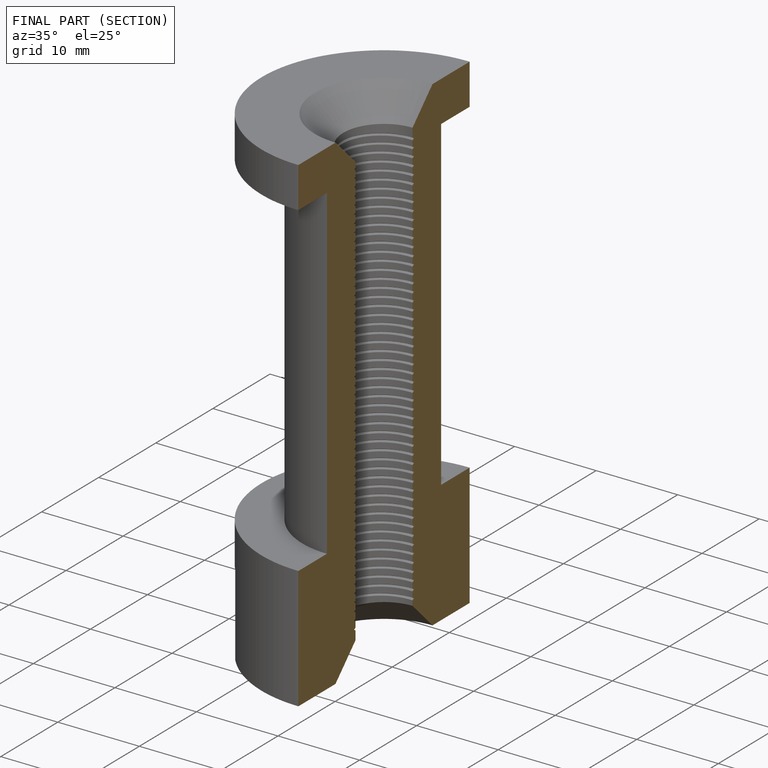
[diagram: finished part — half-section view (interior)]
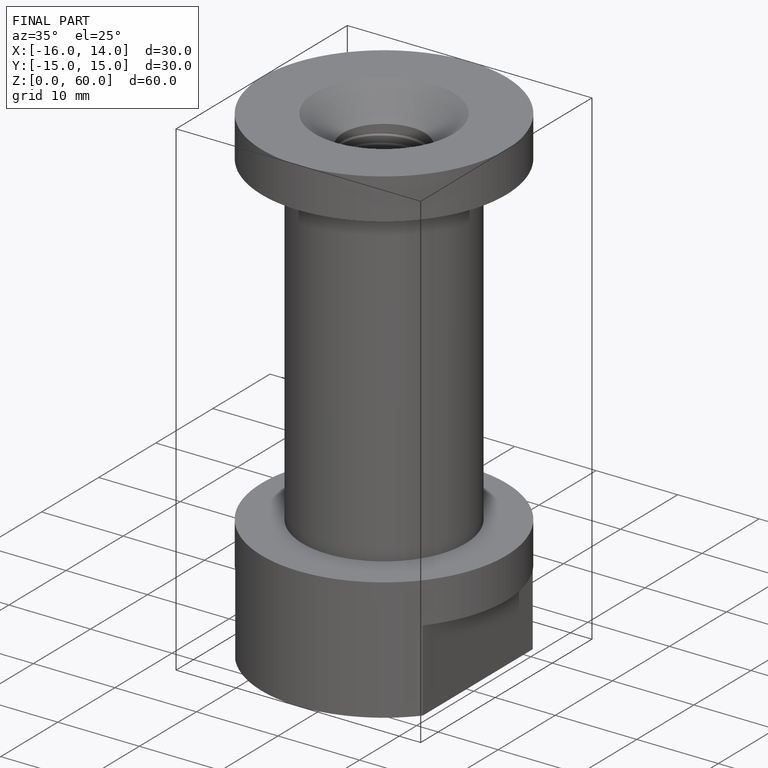
[diagram: finished part — iso view with bounding-box wireframe]
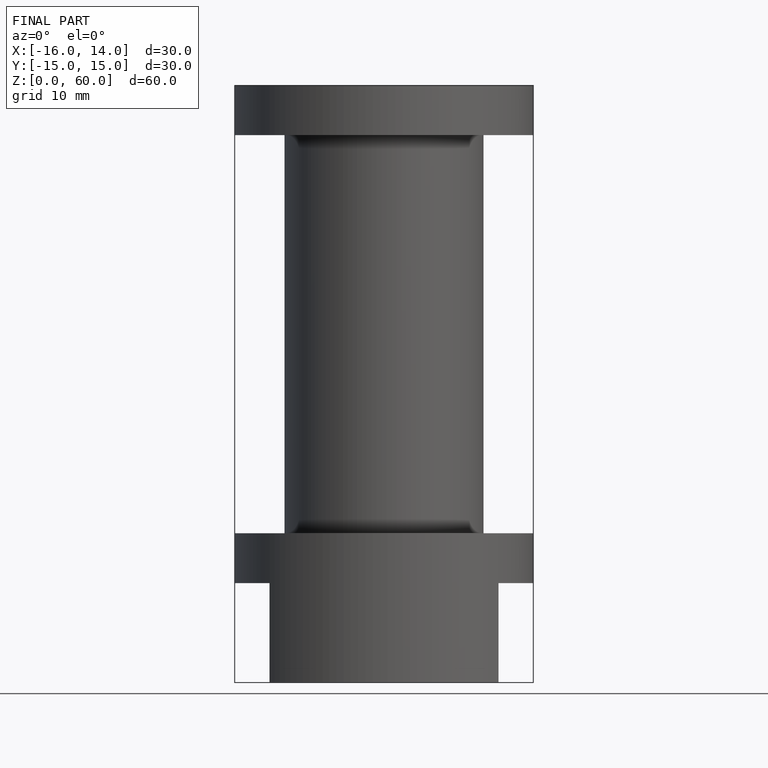
[diagram: finished part — front view with bounding-box wireframe]
